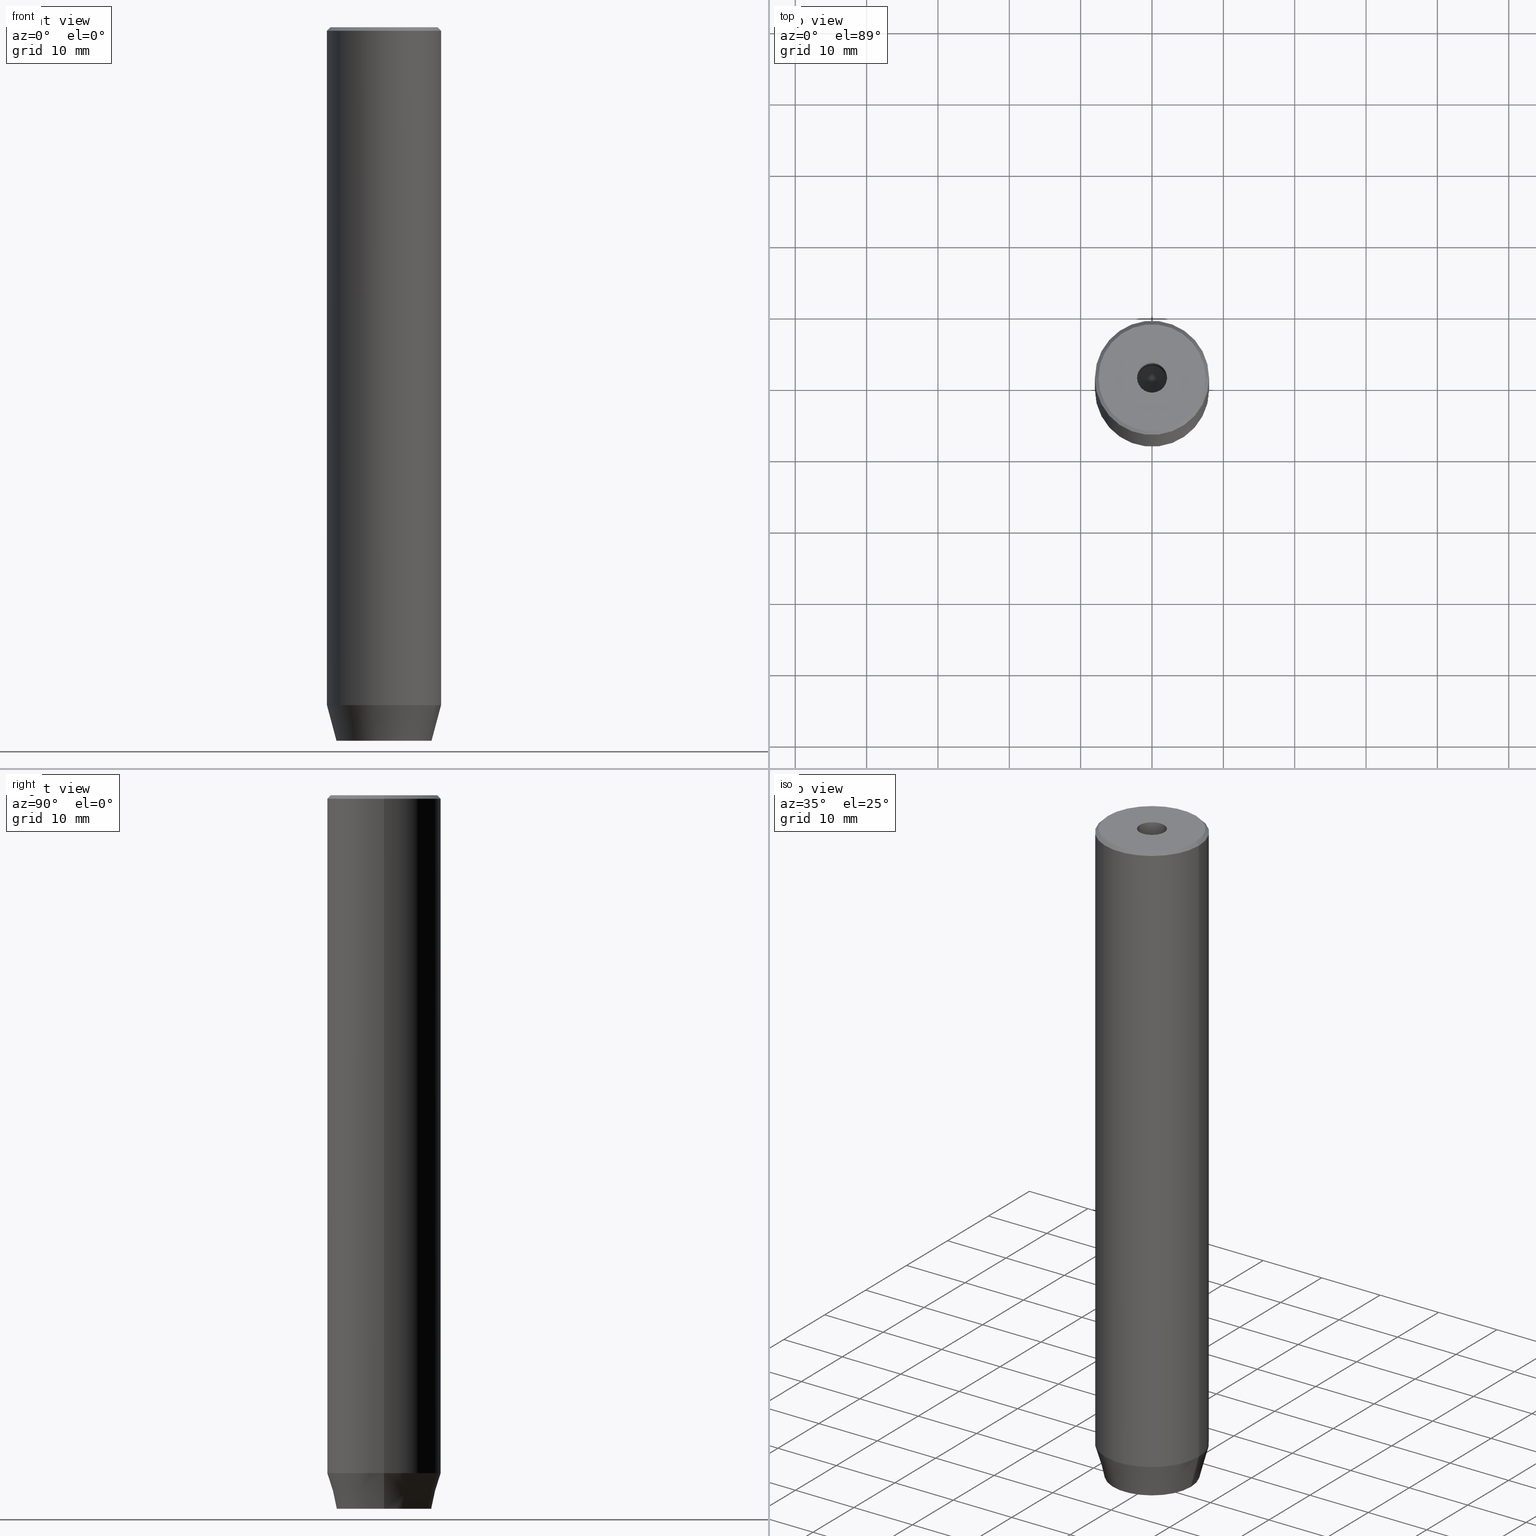
[diagram: canonical four-view strip — front | top / right | iso, engineering-drawing reading convention]
A machine part, canonical four-view strip (front | top / right | iso — engineering-drawing reading convention). The complete STEP part file that produces these views, byte-faithful:
ISO-10303-21;
HEADER;
FILE_DESCRIPTION (( 'STEP AP203' ),
    '1' );
FILE_NAME ('06a7.STEP',
    '2024-01-02T20:40:07',
    ( '' ),
    ( '' ),
    'SwSTEP 2.0',
    'SolidWorks 2019',
    '' );
FILE_SCHEMA (( 'CONFIG_CONTROL_DESIGN' ));
ENDSEC;

DATA;
#1 = CARTESIAN_POINT ( 'NONE',  ( 0.000000000000000000, 0.000000000000000000, 0.000000000000000000 ) ) ;
#2 = LINE ( 'NONE', #132, #495 ) ;
#3 = FACE_OUTER_BOUND ( 'NONE', #147, .T. ) ;
#4 = AXIS2_PLACEMENT_3D ( 'NONE', #1, #308, #498 ) ;
#5 = EDGE_LOOP ( 'NONE', ( #416, #580, #477, #236 ) ) ;
#6 = LOCAL_TIME ( 21, 40, 7.000000000000000000, #49 ) ;
#7 = DIRECTION ( 'NONE',  ( 0.5000000000000001110, 0.8660254037844385966, -0.000000000000000000 ) ) ;
#8 = EDGE_CURVE ( 'NONE', #412, #19, #172, .T. ) ;
#9 = VERTEX_POINT ( 'NONE', #400 ) ;
#10 = DIRECTION ( 'NONE',  ( 0.000000000000000000, 0.000000000000000000, -1.000000000000000000 ) ) ;
#11 = EDGE_LOOP ( 'NONE', ( #190, #327, #130, #392 ) ) ;
#12 = LINE ( 'NONE', #548, #445 ) ;
#13 = APPLICATION_CONTEXT ( 'configuration controlled 3d designs of mechanical parts and assemblies' ) ;
#14 = EDGE_CURVE ( 'NONE', #433, #156, #89, .T. ) ;
#15 = VECTOR ( 'NONE', #354, 1000.000000000000000 ) ;
#16 = VERTEX_POINT ( 'NONE', #44 ) ;
#17 = DIRECTION ( 'NONE',  ( 1.000000000000000000, 0.000000000000000000, 0.000000000000000000 ) ) ;
#18 = CARTESIAN_POINT ( 'NONE',  ( -3.000000000000000444, -7.511572993685800087E-16, -97.20000000000000284 ) ) ;
#19 = VERTEX_POINT ( 'NONE', #135 ) ;
#20 = DIRECTION ( 'NONE',  ( -0.000000000000000000, -0.000000000000000000, 1.000000000000000000 ) ) ;
#21 = ORIENTED_EDGE ( 'NONE', *, *, #143, .T. ) ;
#22 = CARTESIAN_POINT ( 'NONE',  ( -2.168404344971008868E-16, -3.464101615137754830, -97.20000000000000284 ) ) ;
#23 = DIRECTION ( 'NONE',  ( 0.5000000000000001110, -0.8660254037844385966, 0.000000000000000000 ) ) ;
#24 = PERSON ( 'NEUR�EN�', 'NEUR�EN�', 'NEUR�EN�', ('NEUR�EN�'), ('NEUR�EN�'), ('NEUR�EN�') ) ;
#25 = EDGE_CURVE ( 'NONE', #117, #152, #362, .T. ) ;
#26 = EDGE_LOOP ( 'NONE', ( #102, #473 ) ) ;
#27 = DIRECTION ( 'NONE',  ( 1.000000000000000000, 0.000000000000000000, -0.000000000000000000 ) ) ;
#28 = LINE ( 'NONE', #256, #494 ) ;
#29 = ORIENTED_EDGE ( 'NONE', *, *, #184, .F. ) ;
#30 = ORIENTED_EDGE ( 'NONE', *, *, #230, .F. ) ;
#31 = CARTESIAN_POINT ( 'NONE',  ( -3.000000000000000444, -7.511572993685800087E-16, -100.0000000000000000 ) ) ;
#32 = ORIENTED_EDGE ( 'NONE', *, *, #296, .T. ) ;
#33 = ADVANCED_FACE ( 'NONE', ( #175 ), #358, .F. ) ;
#34 = DATE_AND_TIME ( #162, #97 ) ;
#35 = CARTESIAN_POINT ( 'NONE',  ( -8.000000000000000000, 9.797174393178825657E-16, -0.5000000000000213163 ) ) ;
#36 = PRODUCT ( '06a7', '06a7', '', ( #250 ) ) ;
#37 = AXIS2_PLACEMENT_3D ( 'NONE', #479, #27, #578 ) ;
#38 = ORIENTED_EDGE ( 'NONE', *, *, #520, .F. ) ;
#39 = APPROVAL_STATUS ( 'not_yet_approved' ) ;
#40 = DIRECTION ( 'NONE',  ( -0.000000000000000000, -0.000000000000000000, 1.000000000000000000 ) ) ;
#41 = ORIENTED_EDGE ( 'NONE', *, *, #427, .T. ) ;
#42 = CARTESIAN_POINT ( 'NONE',  ( -3.000000000000000000, -1.732050807568877859, -97.20000000000000284 ) ) ;
#43 = PLANE ( 'NONE',  #104 ) ;
#44 = CARTESIAN_POINT ( 'NONE',  ( 3.000000000000000000, 1.732050807568876527, -100.0000000000000000 ) ) ;
#45 = EDGE_CURVE ( 'NONE', #231, #152, #51, .T. ) ;
#46 = AXIS2_PLACEMENT_3D ( 'NONE', #251, #203, #532 ) ;
#47 = CIRCLE ( 'NONE', #399, 7.499999999999978684 ) ;
#48 = DIRECTION ( 'NONE',  ( 0.8660254037844385966, -0.5000000000000001110, 0.000000000000000000 ) ) ;
#49 = COORDINATED_UNIVERSAL_TIME_OFFSET ( 1, 0, .AHEAD. ) ;
#50 = LINE ( 'NONE', #58, #484 ) ;
#51 = LINE ( 'NONE', #59, #15 ) ;
#52 = ORIENTED_EDGE ( 'NONE', *, *, #221, .F. ) ;
#53 = ADVANCED_FACE ( 'NONE', ( #261 ), #280, .T. ) ;
#54 = FACE_OUTER_BOUND ( 'NONE', #112, .T. ) ;
#55 = CARTESIAN_POINT ( 'NONE',  ( -3.000000000000000888, 1.732050807568876527, -97.20000000000000284 ) ) ;
#56 = AXIS2_PLACEMENT_3D ( 'NONE', #447, #223, #505 ) ;
#57 = AXIS2_PLACEMENT_3D ( 'NONE', #60, #232, #371 ) ;
#58 = CARTESIAN_POINT ( 'NONE',  ( 1.500000000000000222, 2.598076211353315568, -100.0000000000000000 ) ) ;
#59 = CARTESIAN_POINT ( 'NONE',  ( -1.084202172485504434E-16, 3.464101615137754830, -97.20000000000000284 ) ) ;
#60 = CARTESIAN_POINT ( 'NONE',  ( 0.000000000000000000, 0.000000000000000000, 0.000000000000000000 ) ) ;
#61 = ORIENTED_EDGE ( 'NONE', *, *, #191, .F. ) ;
#62 = FACE_OUTER_BOUND ( 'NONE', #26, .T. ) ;
#63 = AXIS2_PLACEMENT_3D ( 'NONE', #277, #458, #365 ) ;
#64 = AXIS2_PLACEMENT_3D ( 'NONE', #510, #554, #17 ) ;
#65 = EDGE_LOOP ( 'NONE', ( #540, #419, #464, #214, #350, #87 ) ) ;
#66 = CARTESIAN_POINT ( 'NONE',  ( 8.000000000000000000, 0.000000000000000000, 0.000000000000000000 ) ) ;
#67 = ORIENTED_EDGE ( 'NONE', *, *, #411, .F. ) ;
#68 = DIRECTION ( 'NONE',  ( 1.000000000000000000, 0.000000000000000000, 0.000000000000000000 ) ) ;
#69 = ORIENTED_EDGE ( 'NONE', *, *, #520, .T. ) ;
#70 = EDGE_CURVE ( 'NONE', #272, #412, #265, .T. ) ;
#71 = CARTESIAN_POINT ( 'NONE',  ( 1.500000000000000222, -2.598076211353315568, -97.20000000000000284 ) ) ;
#72 = EDGE_LOOP ( 'NONE', ( #260, #338, #378, #471 ) ) ;
#73 = ORIENTED_EDGE ( 'NONE', *, *, #351, .F. ) ;
#74 = AXIS2_PLACEMENT_3D ( 'NONE', #79, #386, #249 ) ;
#75 = CC_DESIGN_PERSON_AND_ORGANIZATION_ASSIGNMENT ( #393, #202, ( #137 ) ) ;
#76 = DIRECTION ( 'NONE',  ( 1.000000000000000000, 0.000000000000000000, 0.000000000000000000 ) ) ;
#77 = VERTEX_POINT ( 'NONE', #405 ) ;
#78 = VERTEX_POINT ( 'NONE', #55 ) ;
#79 = CARTESIAN_POINT ( 'NONE',  ( 0.000000000000000000, 0.000000000000000000, -1.990051048614449116E-16 ) ) ;
#80 = ORIENTED_EDGE ( 'NONE', *, *, #511, .T. ) ;
#81 = EDGE_CURVE ( 'NONE', #482, #516, #275, .T. ) ;
#82 = VECTOR ( 'NONE', #158, 1000.000000000000000 ) ;
#83 = CARTESIAN_POINT ( 'NONE',  ( 0.000000000000000000, 0.000000000000000000, -95.00000000000000000 ) ) ;
#84 = ORIENTED_EDGE ( 'NONE', *, *, #319, .F. ) ;
#85 = CALENDAR_DATE ( 2024, 2, 1 ) ;
#86 = LINE ( 'NONE', #381, #523 ) ;
#87 = ORIENTED_EDGE ( 'NONE', *, *, #357, .T. ) ;
#88 = ADVANCED_FACE ( 'NONE', ( #542 ), #401, .F. ) ;
#89 = LINE ( 'NONE', #549, #186 ) ;
#90 = EDGE_CURVE ( 'NONE', #516, #482, #388, .T. ) ;
#91 = PERSON_AND_ORGANIZATION ( #24, #208 ) ;
#92 = CARTESIAN_POINT ( 'NONE',  ( 8.000000000000000000, 0.000000000000000000, -95.00000000000000000 ) ) ;
#93 = DIRECTION ( 'NONE',  ( -0.000000000000000000, -0.000000000000000000, 1.000000000000000000 ) ) ;
#94 = LINE ( 'NONE', #264, #462 ) ;
#95 = FACE_OUTER_BOUND ( 'NONE', #11, .T. ) ;
#96 = VECTOR ( 'NONE', #98, 1000.000000000000000 ) ;
#97 = LOCAL_TIME ( 21, 40, 7.000000000000000000, #564 ) ;
#98 = DIRECTION ( 'NONE',  ( 0.8571673007021111124, 0.000000000000000000, 0.5150380749100562650 ) ) ;
#99 = PLANE ( 'NONE',  #218 ) ;
#100 = ADVANCED_FACE ( 'NONE', ( #3 ), #138, .T. ) ;
#101 = CARTESIAN_POINT ( 'NONE',  ( 0.000000000000000000, 0.000000000000000000, -0.5000000000000213163 ) ) ;
#102 = ORIENTED_EDGE ( 'NONE', *, *, #486, .T. ) ;
#103 = PRODUCT_DEFINITION_SHAPE ( 'NONE', 'NONE',  #448 ) ;
#104 = AXIS2_PLACEMENT_3D ( 'NONE', #361, #7, #309 ) ;
#105 = CARTESIAN_POINT ( 'NONE',  ( 0.000000000000000000, 0.000000000000000000, 0.000000000000000000 ) ) ;
#106 = ORIENTED_EDGE ( 'NONE', *, *, #8, .T. ) ;
#107 = ADVANCED_FACE ( 'NONE', ( #95 ), #444, .T. ) ;
#108 = CARTESIAN_POINT ( 'NONE',  ( 2.099999999999996092, 0.000000000000000000, -20.00000000000000000 ) ) ;
#109 = EDGE_LOOP ( 'NONE', ( #121, #193, #80, #41 ) ) ;
#110 = PERSON_AND_ORGANIZATION ( #24, #208 ) ;
#111 = DIRECTION ( 'NONE',  ( 1.000000000000000000, 0.000000000000000000, 0.000000000000000000 ) ) ;
#112 = EDGE_LOOP ( 'NONE', ( #284, #164, #552 ) ) ;
#113 = EDGE_LOOP ( 'NONE', ( #288, #84, #291, #417 ) ) ;
#114 = ADVANCED_FACE ( 'NONE', ( #196 ), #145, .F. ) ;
#115 = DIRECTION ( 'NONE',  ( 1.000000000000000000, 0.000000000000000000, 0.000000000000000000 ) ) ;
#116 = AXIS2_PLACEMENT_3D ( 'NONE', #279, #283, #148 ) ;
#117 = VERTEX_POINT ( 'NONE', #322 ) ;
#118 = ORIENTED_EDGE ( 'NONE', *, *, #81, .T. ) ;
#119 = DATE_AND_TIME ( #248, #220 ) ;
#120 = DIRECTION ( 'NONE',  ( 0.7071067811865474617, 8.659560562354932858E-17, -0.7071067811865474617 ) ) ;
#121 = ORIENTED_EDGE ( 'NONE', *, *, #278, .F. ) ;
#122 = APPROVAL_STATUS ( 'not_yet_approved' ) ;
#123 = LINE ( 'NONE', #481, #179 ) ;
#124 = VERTEX_POINT ( 'NONE', #155 ) ;
#125 = PERSON_AND_ORGANIZATION_ROLE ( 'classification_officer' ) ;
#126 = CARTESIAN_POINT ( 'NONE',  ( -1.500000000000000666, -2.598076211353316456, -97.20000000000000284 ) ) ;
#127 = AXIS2_PLACEMENT_3D ( 'NONE', #320, #282, #466 ) ;
#128 = ADVANCED_FACE ( 'NONE', ( #287 ), #434, .T. ) ;
#129 = CARTESIAN_POINT ( 'NONE',  ( 2.099999999999996092, 0.000000000000000000, -20.00000000000000000 ) ) ;
#130 = ORIENTED_EDGE ( 'NONE', *, *, #492, .F. ) ;
#131 = DATE_TIME_ROLE ( 'classification_date' ) ;
#132 = CARTESIAN_POINT ( 'NONE',  ( 1.500000000000000222, 2.598076211353315568, -97.20000000000000284 ) ) ;
#133 = DIRECTION ( 'NONE',  ( 1.000000000000000000, 0.000000000000000000, 0.000000000000000000 ) ) ;
#134 = CC_DESIGN_DATE_AND_TIME_ASSIGNMENT ( #119, #575, ( #448 ) ) ;
#135 = CARTESIAN_POINT ( 'NONE',  ( -2.168404344971008868E-16, -3.464101615137754830, -100.0000000000000000 ) ) ;
#136 = VECTOR ( 'NONE', #353, 1000.000000000000000 ) ;
#137 = PRODUCT_DEFINITION_FORMATION_WITH_SPECIFIED_SOURCE ( 'LIBOVOLN�', '', #36, .NOT_KNOWN. ) ;
#138 = CYLINDRICAL_SURFACE ( 'NONE', #414, 8.000000000000000000 ) ;
#139 = LINE ( 'NONE', #352, #136 ) ;
#140 = DIRECTION ( 'NONE',  ( 1.000000000000000000, 0.000000000000000000, 0.000000000000000000 ) ) ;
#141 = LINE ( 'NONE', #22, #187 ) ;
#142 = AXIS2_PLACEMENT_3D ( 'NONE', #438, #344, #528 ) ;
#143 = EDGE_CURVE ( 'NONE', #387, #181, #483, .T. ) ;
#144 = DIRECTION ( 'NONE',  ( -0.000000000000000000, -0.000000000000000000, 1.000000000000000000 ) ) ;
#145 = PLANE ( 'NONE',  #470 ) ;
#146 = CARTESIAN_POINT ( 'NONE',  ( 6.660254037844381969, 0.000000000000000000, -100.0000000000000000 ) ) ;
#147 = EDGE_LOOP ( 'NONE', ( #21, #379, #439, #333 ) ) ;
#148 = DIRECTION ( 'NONE',  ( 1.000000000000000000, 0.000000000000000000, 0.000000000000000000 ) ) ;
#149 = DIRECTION ( 'NONE',  ( 0.000000000000000000, 0.000000000000000000, -1.000000000000000000 ) ) ;
#150 = EDGE_CURVE ( 'NONE', #422, #124, #165, .T. ) ;
#151 = DIRECTION ( 'NONE',  ( 1.000000000000000000, 0.000000000000000000, 0.000000000000000000 ) ) ;
#152 = VERTEX_POINT ( 'NONE', #298 ) ;
#153 = ORIENTED_EDGE ( 'NONE', *, *, #319, .T. ) ;
#154 = COORDINATED_UNIVERSAL_TIME_OFFSET ( 1, 0, .AHEAD. ) ;
#155 = CARTESIAN_POINT ( 'NONE',  ( -3.000000000000000000, -1.732050807568877859, -97.20000000000000284 ) ) ;
#156 = VERTEX_POINT ( 'NONE', #35 ) ;
#157 = DIRECTION ( 'NONE',  ( 0.8660254037844385966, 0.5000000000000001110, 0.000000000000000000 ) ) ;
#158 = DIRECTION ( 'NONE',  ( -0.8660254037844385966, 0.5000000000000001110, 0.000000000000000000 ) ) ;
#159 = FACE_OUTER_BOUND ( 'NONE', #72, .T. ) ;
#160 = VECTOR ( 'NONE', #556, 1000.000000000000000 ) ;
#161 = CARTESIAN_POINT ( 'NONE',  ( 3.000000000000000000, -1.732050807568876527, -97.20000000000000284 ) ) ;
#162 = CALENDAR_DATE ( 2024, 2, 1 ) ;
#163 = PLANE ( 'NONE',  #142 ) ;
#164 = ORIENTED_EDGE ( 'NONE', *, *, #411, .T. ) ;
#165 = LINE ( 'NONE', #126, #82 ) ;
#166 = EDGE_LOOP ( 'NONE', ( #67, #244, #503 ) ) ;
#167 = EDGE_CURVE ( 'NONE', #9, #490, #86, .T. ) ;
#168 = AXIS2_PLACEMENT_3D ( 'NONE', #101, #561, #467 ) ;
#169 = DIRECTION ( 'NONE',  ( 0.000000000000000000, 0.000000000000000000, -1.000000000000000000 ) ) ;
#170 = ORIENTED_EDGE ( 'NONE', *, *, #296, .F. ) ;
#171 = CARTESIAN_POINT ( 'NONE',  ( -8.000000000000000000, 9.797174393178825657E-16, 0.000000000000000000 ) ) ;
#172 = LINE ( 'NONE', #455, #534 ) ;
#173 = EDGE_CURVE ( 'NONE', #295, #281, #562, .T. ) ;
#174 = FACE_OUTER_BOUND ( 'NONE', #345, .T. ) ;
#175 = FACE_OUTER_BOUND ( 'NONE', #529, .T. ) ;
#176 = LINE ( 'NONE', #313, #524 ) ;
#177 = AXIS2_PLACEMENT_3D ( 'NONE', #557, #149, #317 ) ;
#178 = ORIENTED_EDGE ( 'NONE', *, *, #90, .F. ) ;
#179 = VECTOR ( 'NONE', #40, 1000.000000000000000 ) ;
#180 = CIRCLE ( 'NONE', #168, 8.000000000000000000 ) ;
#181 = VERTEX_POINT ( 'NONE', #426 ) ;
#182 = DIRECTION ( 'NONE',  ( 0.8660254037844387076, 0.4999999999999999445, 0.000000000000000000 ) ) ;
#183 = CARTESIAN_POINT ( 'NONE',  ( -2.099999999999998757, 2.571758278209440478E-16, -1.990051048614449116E-16 ) ) ;
#184 = EDGE_CURVE ( 'NONE', #181, #387, #407, .T. ) ;
#185 = DIRECTION ( 'NONE',  ( 1.000000000000000000, 0.000000000000000000, 0.000000000000000000 ) ) ;
#186 = VECTOR ( 'NONE', #364, 1000.000000000000114 ) ;
#187 = VECTOR ( 'NONE', #229, 1000.000000000000000 ) ;
#188 = CARTESIAN_POINT ( 'NONE',  ( 0.000000000000000000, 0.000000000000000000, 0.000000000000000000 ) ) ;
#189 = DIRECTION ( 'NONE',  ( 2.503857664561933362E-16, -1.000000000000000000, 0.000000000000000000 ) ) ;
#190 = ORIENTED_EDGE ( 'NONE', *, *, #476, .F. ) ;
#191 = EDGE_CURVE ( 'NONE', #16, #412, #430, .T. ) ;
#192 = CARTESIAN_POINT ( 'NONE',  ( 8.000000000000000000, 0.000000000000000000, -0.5000000000000213163 ) ) ;
#193 = ORIENTED_EDGE ( 'NONE', *, *, #173, .F. ) ;
#194 = LINE ( 'NONE', #108, #96 ) ;
#195 = CC_DESIGN_PERSON_AND_ORGANIZATION_ASSIGNMENT ( #531, #125, ( #496 ) ) ;
#196 = FACE_OUTER_BOUND ( 'NONE', #113, .T. ) ;
#197 = ORIENTED_EDGE ( 'NONE', *, *, #25, .T. ) ;
#198 = CIRCLE ( 'NONE', #571, 8.000000000000000000 ) ;
#199 = LOCAL_TIME ( 21, 40, 7.000000000000000000, #297 ) ;
#200 = ORIENTED_EDGE ( 'NONE', *, *, #25, .F. ) ;
#201 = EDGE_LOOP ( 'NONE', ( #170, #566, #335, #29 ) ) ;
#202 = PERSON_AND_ORGANIZATION_ROLE ( 'creator' ) ;
#203 = DIRECTION ( 'NONE',  ( -0.000000000000000000, -0.000000000000000000, 1.000000000000000000 ) ) ;
#204 = ADVANCED_FACE ( 'NONE', ( #206 ), #366, .F. ) ;
#205 = PERSON_AND_ORGANIZATION ( #24, #208 ) ;
#206 = FACE_OUTER_BOUND ( 'NONE', #166, .T. ) ;
#207 = PERSON_AND_ORGANIZATION_ROLE ( 'creator' ) ;
#208 = ORGANIZATION ( 'NEUR�EN�', 'NEUR�EN�', '' ) ;
#209 = LINE ( 'NONE', #42, #253 ) ;
#210 = ORIENTED_EDGE ( 'NONE', *, *, #427, .F. ) ;
#211 = DATE_AND_TIME ( #330, #199 ) ;
#212 = EDGE_CURVE ( 'NONE', #482, #387, #28, .T. ) ;
#213 = CARTESIAN_POINT ( 'NONE',  ( -2.099999999999996092, 2.571758278209436534E-16, -20.00000000000000000 ) ) ;
#214 = ORIENTED_EDGE ( 'NONE', *, *, #368, .T. ) ;
#215 = DIRECTION ( 'NONE',  ( -0.000000000000000000, -0.000000000000000000, 1.000000000000000000 ) ) ;
#216 = ORIENTED_EDGE ( 'NONE', *, *, #252, .T. ) ;
#217 = DATE_AND_TIME ( #85, #454 ) ;
#218 = AXIS2_PLACEMENT_3D ( 'NONE', #369, #10, #363 ) ;
#219 = CARTESIAN_POINT ( 'NONE',  ( -1.499999999999999556, 2.598076211353316012, -100.0000000000000000 ) ) ;
#220 = LOCAL_TIME ( 21, 40, 7.000000000000000000, #154 ) ;
#221 = EDGE_CURVE ( 'NONE', #124, #292, #209, .T. ) ;
#222 = DIRECTION ( 'NONE',  ( -0.4999999999999999445, 0.8660254037844387076, 0.000000000000000000 ) ) ;
#223 = DIRECTION ( 'NONE',  ( -0.000000000000000000, -0.000000000000000000, 1.000000000000000000 ) ) ;
#224 = DIRECTION ( 'NONE',  ( 0.8660254037844385966, -0.5000000000000001110, 0.000000000000000000 ) ) ;
#225 = DIRECTION ( 'NONE',  ( -0.5000000000000001110, -0.8660254037844385966, 0.000000000000000000 ) ) ;
#226 = CARTESIAN_POINT ( 'NONE',  ( -5.207640850796248781E-15, 0.000000000000000000, -21.26180729995787999 ) ) ;
#227 = AXIS2_PLACEMENT_3D ( 'NONE', #502, #546, #140 ) ;
#228 = CONICAL_SURFACE ( 'NONE', #305, 7.499999999999978684, 0.7853981633974482790 ) ;
#229 = DIRECTION ( 'NONE',  ( -0.000000000000000000, -0.000000000000000000, -1.000000000000000000 ) ) ;
#230 = EDGE_CURVE ( 'NONE', #490, #156, #198, .T. ) ;
#231 = VERTEX_POINT ( 'NONE', #246 ) ;
#232 = DIRECTION ( 'NONE',  ( -0.000000000000000000, -0.000000000000000000, 1.000000000000000000 ) ) ;
#233 = APPROVAL ( #539, 'NEUR�EN�' ) ;
#234 = ORIENTED_EDGE ( 'NONE', *, *, #486, .F. ) ;
#235 = CARTESIAN_POINT ( 'NONE',  ( -6.660254037844381969, 8.976816591066591237E-16, -100.0000000000000000 ) ) ;
#236 = ORIENTED_EDGE ( 'NONE', *, *, #230, .T. ) ;
#237 = VECTOR ( 'NONE', #306, 999.9999999999998863 ) ;
#238 = AXIS2_PLACEMENT_3D ( 'NONE', #508, #144, #151 ) ;
#239 = CC_DESIGN_PERSON_AND_ORGANIZATION_ASSIGNMENT ( #205, #207, ( #448 ) ) ;
#240 = CARTESIAN_POINT ( 'NONE',  ( 2.099999999999997424, 0.000000000000000000, 0.000000000000000000 ) ) ;
#241 = ORIENTED_EDGE ( 'NONE', *, *, #511, .F. ) ;
#242 = DIRECTION ( 'NONE',  ( 0.000000000000000000, -0.000000000000000000, 1.000000000000000000 ) ) ;
#243 = ORIENTED_EDGE ( 'NONE', *, *, #267, .F. ) ;
#244 = ORIENTED_EDGE ( 'NONE', *, *, #302, .T. ) ;
#245 = APPLICATION_PROTOCOL_DEFINITION ( 'international standard', 'config_control_design', 1994, #13 ) ;
#246 = CARTESIAN_POINT ( 'NONE',  ( -1.084202172485504434E-16, 3.464101615137754830, -97.20000000000000284 ) ) ;
#247 = EDGE_CURVE ( 'NONE', #77, #16, #391, .T. ) ;
#248 = CALENDAR_DATE ( 2024, 2, 1 ) ;
#249 = DIRECTION ( 'NONE',  ( 1.000000000000000000, 0.000000000000000000, 0.000000000000000000 ) ) ;
#250 = MECHANICAL_CONTEXT ( 'NONE', #359, 'mechanical' ) ;
#251 = CARTESIAN_POINT ( 'NONE',  ( 0.000000000000000000, 0.000000000000000000, -95.00000000000000000 ) ) ;
#252 = EDGE_CURVE ( 'NONE', #406, #332, #324, .T. ) ;
#253 = VECTOR ( 'NONE', #469, 1000.000000000000000 ) ;
#254 = APPLICATION_PROTOCOL_DEFINITION ( 'international standard', 'config_control_design', 1994, #359 ) ;
#255 = CIRCLE ( 'NONE', #238, 7.499999999999978684 ) ;
#256 = CARTESIAN_POINT ( 'NONE',  ( 8.000000000000000000, 0.000000000000000000, -95.00000000000000000 ) ) ;
#257 = CALENDAR_DATE ( 2024, 2, 1 ) ;
#258 = CC_DESIGN_PERSON_AND_ORGANIZATION_ASSIGNMENT ( #380, #568, ( #137 ) ) ;
#259 = DIRECTION ( 'NONE',  ( -0.000000000000000000, -0.000000000000000000, 1.000000000000000000 ) ) ;
#260 = ORIENTED_EDGE ( 'NONE', *, *, #191, .T. ) ;
#261 = FACE_OUTER_BOUND ( 'NONE', #201, .T. ) ;
#262 = APPROVAL_DATE_TIME ( #217, #233 ) ;
#263 = CLOSED_SHELL ( 'NONE', ( #88, #204, #107, #128, #100, #273, #457, #530, #53, #382, #397, #114, #33, #567, #576, #285, #420, #403, #465 ) ) ;
#264 = CARTESIAN_POINT ( 'NONE',  ( 1.500000000000000222, -2.598076211353315568, -97.20000000000000284 ) ) ;
#265 = LINE ( 'NONE', #303, #550 ) ;
#266 = CC_DESIGN_APPROVAL ( #340, ( #448 ) ) ;
#267 = EDGE_CURVE ( 'NONE', #292, #117, #294, .T. ) ;
#268 = ADVANCED_BREP_SHAPE_REPRESENTATION ( '06a7', ( #501, #485 ), #389 ) ;
#269 = DIRECTION ( 'NONE',  ( -0.8660254037844385966, -0.5000000000000001110, 0.000000000000000000 ) ) ;
#270 = LINE ( 'NONE', #171, #415 ) ;
#271 = DIRECTION ( 'NONE',  ( 1.000000000000000000, 0.000000000000000000, 0.000000000000000000 ) ) ;
#272 = VERTEX_POINT ( 'NONE', #161 ) ;
#273 = ADVANCED_FACE ( 'NONE', ( #526, #577 ), #163, .T. ) ;
#274 = LINE ( 'NONE', #489, #348 ) ;
#275 = CIRCLE ( 'NONE', #56, 6.660254037844381969 ) ;
#276 = PLANE ( 'NONE',  #299 ) ;
#277 = CARTESIAN_POINT ( 'NONE',  ( 0.000000000000000000, 0.000000000000000000, -20.00000000000000000 ) ) ;
#278 = EDGE_CURVE ( 'NONE', #281, #406, #123, .T. ) ;
#279 = CARTESIAN_POINT ( 'NONE',  ( 0.000000000000000000, 0.000000000000000000, -1.990051048614449116E-16 ) ) ;
#280 = CONICAL_SURFACE ( 'NONE', #336, 8.000000000000000000, 0.2617993877991500740 ) ;
#281 = VERTEX_POINT ( 'NONE', #213 ) ;
#282 = DIRECTION ( 'NONE',  ( -0.000000000000000000, -0.000000000000000000, 1.000000000000000000 ) ) ;
#283 = DIRECTION ( 'NONE',  ( -0.000000000000000000, -0.000000000000000000, 1.000000000000000000 ) ) ;
#284 = ORIENTED_EDGE ( 'NONE', *, *, #302, .F. ) ;
#285 = ADVANCED_FACE ( 'NONE', ( #394 ), #43, .F. ) ;
#286 = FACE_OUTER_BOUND ( 'NONE', #560, .T. ) ;
#287 = FACE_OUTER_BOUND ( 'NONE', #372, .T. ) ;
#288 = ORIENTED_EDGE ( 'NONE', *, *, #267, .T. ) ;
#289 = ORIENTED_EDGE ( 'NONE', *, *, #247, .F. ) ;
#290 = CARTESIAN_POINT ( 'NONE',  ( 3.000000000000000000, 1.732050807568876527, -97.20000000000000284 ) ) ;
#291 = ORIENTED_EDGE ( 'NONE', *, *, #357, .F. ) ;
#292 = VERTEX_POINT ( 'NONE', #497 ) ;
#293 = PLANE ( 'NONE',  #585 ) ;
#294 = LINE ( 'NONE', #31, #398 ) ;
#295 = VERTEX_POINT ( 'NONE', #129 ) ;
#296 = EDGE_CURVE ( 'NONE', #516, #181, #446, .T. ) ;
#297 = COORDINATED_UNIVERSAL_TIME_OFFSET ( 1, 0, .AHEAD. ) ;
#298 = CARTESIAN_POINT ( 'NONE',  ( -2.168404344971008868E-16, 3.464101615137754830, -100.0000000000000000 ) ) ;
#299 = AXIS2_PLACEMENT_3D ( 'NONE', #188, #242, #68 ) ;
#300 = ORIENTED_EDGE ( 'NONE', *, *, #252, .F. ) ;
#301 = DIRECTION ( 'NONE',  ( -0.8660254037844387076, -0.4999999999999999445, 0.000000000000000000 ) ) ;
#302 = EDGE_CURVE ( 'NONE', #384, #281, #176, .T. ) ;
#303 = CARTESIAN_POINT ( 'NONE',  ( 3.000000000000000000, -1.732050807568876527, -97.20000000000000284 ) ) ;
#304 = VECTOR ( 'NONE', #475, 1000.000000000000000 ) ;
#305 = AXIS2_PLACEMENT_3D ( 'NONE', #396, #169, #404 ) ;
#306 = DIRECTION ( 'NONE',  ( 0.8660254037844387076, 0.4999999999999999445, 0.000000000000000000 ) ) ;
#307 = VECTOR ( 'NONE', #20, 1000.000000000000000 ) ;
#308 = DIRECTION ( 'NONE',  ( -0.000000000000000000, -0.000000000000000000, 1.000000000000000000 ) ) ;
#309 = DIRECTION ( 'NONE',  ( -0.8660254037844385966, 0.5000000000000001110, 0.000000000000000000 ) ) ;
#310 = CARTESIAN_POINT ( 'NONE',  ( 0.000000000000000000, 0.000000000000000000, 0.000000000000000000 ) ) ;
#311 = EDGE_CURVE ( 'NONE', #181, #156, #270, .T. ) ;
#312 = EDGE_LOOP ( 'NONE', ( #210, #300 ) ) ;
#313 = CARTESIAN_POINT ( 'NONE',  ( -2.099999999999996092, 2.571758278209436534E-16, -20.00000000000000000 ) ) ;
#314 = DIRECTION ( 'NONE',  ( -0.000000000000000000, -0.000000000000000000, 1.000000000000000000 ) ) ;
#315 = CARTESIAN_POINT ( 'NONE',  ( -7.499999999999978684, 0.000000000000000000, 0.000000000000000000 ) ) ;
#316 = AXIS2_PLACEMENT_3D ( 'NONE', #480, #334, #111 ) ;
#317 = DIRECTION ( 'NONE',  ( -1.000000000000000000, 0.000000000000000000, 0.000000000000000000 ) ) ;
#318 = APPROVAL_PERSON_ORGANIZATION ( #110, #340, #339 ) ;
#319 = EDGE_CURVE ( 'NONE', #78, #117, #139, .T. ) ;
#320 = CARTESIAN_POINT ( 'NONE',  ( 0.000000000000000000, 0.000000000000000000, -20.00000000000000000 ) ) ;
#321 = FACE_BOUND ( 'NONE', #312, .T. ) ;
#322 = CARTESIAN_POINT ( 'NONE',  ( -3.000000000000000888, 1.732050807568876527, -100.0000000000000000 ) ) ;
#323 = CARTESIAN_POINT ( 'NONE',  ( 3.000000000000000000, -1.732050807568876527, -100.0000000000000000 ) ) ;
#324 = CIRCLE ( 'NONE', #74, 2.099999999999998757 ) ;
#325 = ORIENTED_EDGE ( 'NONE', *, *, #374, .T. ) ;
#326 = CYLINDRICAL_SURFACE ( 'NONE', #64, 2.099999999999997424 ) ;
#327 = ORIENTED_EDGE ( 'NONE', *, *, #167, .T. ) ;
#328 = EDGE_CURVE ( 'NONE', #231, #77, #2, .T. ) ;
#329 = EDGE_LOOP ( 'NONE', ( #428, #533, #216, #241 ) ) ;
#330 = CALENDAR_DATE ( 2024, 2, 1 ) ;
#331 = DIRECTION ( 'NONE',  ( 0.000000000000000000, -1.000000000000000000, 0.000000000000000000 ) ) ;
#332 = VERTEX_POINT ( 'NONE', #504 ) ;
#333 = ORIENTED_EDGE ( 'NONE', *, *, #507, .F. ) ;
#334 = DIRECTION ( 'NONE',  ( -0.000000000000000000, -0.000000000000000000, 1.000000000000000000 ) ) ;
#335 = ORIENTED_EDGE ( 'NONE', *, *, #212, .T. ) ;
#336 = AXIS2_PLACEMENT_3D ( 'NONE', #443, #314, #133 ) ;
#337 = AXIS2_PLACEMENT_3D ( 'NONE', #569, #259, #115 ) ;
#338 = ORIENTED_EDGE ( 'NONE', *, *, #70, .F. ) ;
#339 = APPROVAL_ROLE ( '' ) ;
#340 = APPROVAL ( #39, 'NEUR�EN�' ) ;
#341 = CARTESIAN_POINT ( 'NONE',  ( 3.000000000000000000, 0.000000000000000000, -100.0000000000000000 ) ) ;
#342 = EDGE_LOOP ( 'NONE', ( #468, #234, #459, #30 ) ) ;
#343 = PLANE ( 'NONE',  #37 ) ;
#344 = DIRECTION ( 'NONE',  ( 0.000000000000000000, 0.000000000000000000, -1.000000000000000000 ) ) ;
#345 = EDGE_LOOP ( 'NONE', ( #197, #519, #73, #153 ) ) ;
#346 = CARTESIAN_POINT ( 'NONE',  ( 0.000000000000000000, 0.000000000000000000, 0.000000000000000000 ) ) ;
#347 = CARTESIAN_POINT ( 'NONE',  ( 0.000000000000000000, 0.000000000000000000, -0.5000000000000213163 ) ) ;
#348 = VECTOR ( 'NONE', #450, 1000.000000000000000 ) ;
#349 = DIRECTION ( 'NONE',  ( -0.2588190451025213501, 3.169619151431772337E-17, 0.9659258262890680902 ) ) ;
#350 = ORIENTED_EDGE ( 'NONE', *, *, #150, .T. ) ;
#351 = EDGE_CURVE ( 'NONE', #78, #231, #491, .T. ) ;
#352 = CARTESIAN_POINT ( 'NONE',  ( -3.000000000000000888, 1.732050807568876527, -97.20000000000000284 ) ) ;
#353 = DIRECTION ( 'NONE',  ( -0.000000000000000000, -0.000000000000000000, -1.000000000000000000 ) ) ;
#354 = DIRECTION ( 'NONE',  ( -0.000000000000000000, -0.000000000000000000, -1.000000000000000000 ) ) ;
#355 = AXIS2_PLACEMENT_3D ( 'NONE', #538, #225, #48 ) ;
#356 = PLANE ( 'NONE',  #573 ) ;
#357 = EDGE_CURVE ( 'NONE', #124, #78, #274, .T. ) ;
#358 = PLANE ( 'NONE',  #355 ) ;
#359 = APPLICATION_CONTEXT ( 'configuration controlled 3d designs of mechanical parts and assemblies' ) ;
#360 = ORIENTED_EDGE ( 'NONE', *, *, #368, .F. ) ;
#361 = CARTESIAN_POINT ( 'NONE',  ( 1.500000000000000222, 2.598076211353315568, -97.20000000000000284 ) ) ;
#362 = LINE ( 'NONE', #219, #461 ) ;
#363 = DIRECTION ( 'NONE',  ( -1.000000000000000000, 0.000000000000000000, -0.000000000000000000 ) ) ;
#364 = DIRECTION ( 'NONE',  ( -0.7071067811865474617, 0.000000000000000000, -0.7071067811865474617 ) ) ;
#365 = DIRECTION ( 'NONE',  ( 1.000000000000000000, 0.000000000000000000, 0.000000000000000000 ) ) ;
#366 = CONICAL_SURFACE ( 'NONE', #451, 2.099999999999996092, 1.029744258676652091 ) ;
#367 = CC_DESIGN_APPROVAL ( #535, ( #137 ) ) ;
#368 = EDGE_CURVE ( 'NONE', #272, #422, #94, .T. ) ;
#369 = CARTESIAN_POINT ( 'NONE',  ( 0.000000000000000000, 0.000000000000000000, -97.20000000000000284 ) ) ;
#370 = ORIENTED_EDGE ( 'NONE', *, *, #547, .F. ) ;
#371 = DIRECTION ( 'NONE',  ( 1.000000000000000000, 0.000000000000000000, 0.000000000000000000 ) ) ;
#372 = EDGE_LOOP ( 'NONE', ( #118, #32, #424, #431 ) ) ;
#373 = DIRECTION ( 'NONE',  ( 0.000000000000000000, -1.000000000000000000, 0.000000000000000000 ) ) ;
#374 = EDGE_CURVE ( 'NONE', #152, #16, #50, .T. ) ;
#375 = VECTOR ( 'NONE', #331, 1000.000000000000000 ) ;
#376 = APPROVAL_PERSON_ORGANIZATION ( #390, #535, #474 ) ;
#377 = PERSON_AND_ORGANIZATION ( #24, #208 ) ;
#378 = ORIENTED_EDGE ( 'NONE', *, *, #440, .F. ) ;
#379 = ORIENTED_EDGE ( 'NONE', *, *, #311, .T. ) ;
#380 = PERSON_AND_ORGANIZATION ( #24, #208 ) ;
#381 = CARTESIAN_POINT ( 'NONE',  ( 7.499999999999978684, 9.184850993605122306E-16, 0.000000000000000000 ) ) ;
#382 = ADVANCED_FACE ( 'NONE', ( #453 ), #228, .T. ) ;
#383 = DESIGN_CONTEXT ( 'detailed design', #13, 'design' ) ;
#384 = VERTEX_POINT ( 'NONE', #226 ) ;
#385 =( LENGTH_UNIT ( ) NAMED_UNIT ( * ) SI_UNIT ( .MILLI., .METRE. ) );
#386 = DIRECTION ( 'NONE',  ( -0.000000000000000000, -0.000000000000000000, 1.000000000000000000 ) ) ;
#387 = VERTEX_POINT ( 'NONE', #92 ) ;
#388 = CIRCLE ( 'NONE', #227, 6.660254037844381969 ) ;
#389 =( GEOMETRIC_REPRESENTATION_CONTEXT ( 3 ) GLOBAL_UNCERTAINTY_ASSIGNED_CONTEXT ( ( #559 ) ) GLOBAL_UNIT_ASSIGNED_CONTEXT ( ( #385, #521, #517 ) ) REPRESENTATION_CONTEXT ( 'NONE', 'WORKASPACE' ) );
#390 = PERSON_AND_ORGANIZATION ( #24, #208 ) ;
#391 = LINE ( 'NONE', #290, #304 ) ;
#392 = ORIENTED_EDGE ( 'NONE', *, *, #14, .F. ) ;
#393 = PERSON_AND_ORGANIZATION ( #24, #208 ) ;
#394 = FACE_OUTER_BOUND ( 'NONE', #583, .T. ) ;
#395 = ORIENTED_EDGE ( 'NONE', *, *, #374, .F. ) ;
#396 = CARTESIAN_POINT ( 'NONE',  ( 0.000000000000000000, 0.000000000000000000, 0.000000000000000000 ) ) ;
#397 = ADVANCED_FACE ( 'NONE', ( #174 ), #356, .F. ) ;
#398 = VECTOR ( 'NONE', #572, 1000.000000000000000 ) ;
#399 = AXIS2_PLACEMENT_3D ( 'NONE', #105, #456, #185 ) ;
#400 = CARTESIAN_POINT ( 'NONE',  ( 7.499999999999978684, 9.491012693391973982E-16, 0.000000000000000000 ) ) ;
#401 = CYLINDRICAL_SURFACE ( 'NONE', #4, 2.099999999999997424 ) ;
#402 = COORDINATED_UNIVERSAL_TIME_OFFSET ( 1, 0, .AHEAD. ) ;
#403 = ADVANCED_FACE ( 'NONE', ( #54 ), #452, .F. ) ;
#404 = DIRECTION ( 'NONE',  ( -1.000000000000000000, 0.000000000000000000, 0.000000000000000000 ) ) ;
#405 = CARTESIAN_POINT ( 'NONE',  ( 3.000000000000000000, 1.732050807568876527, -97.20000000000000284 ) ) ;
#406 = VERTEX_POINT ( 'NONE', #183 ) ;
#407 = CIRCLE ( 'NONE', #316, 8.000000000000000000 ) ;
#408 = DIRECTION ( 'NONE',  ( -0.8660254037844385966, -0.5000000000000001110, 0.000000000000000000 ) ) ;
#409 = CYLINDRICAL_SURFACE ( 'NONE', #57, 8.000000000000000000 ) ;
#410 = LINE ( 'NONE', #413, #436 ) ;
#411 = EDGE_CURVE ( 'NONE', #384, #295, #194, .T. ) ;
#412 = VERTEX_POINT ( 'NONE', #323 ) ;
#413 = CARTESIAN_POINT ( 'NONE',  ( -1.500000000000000666, -2.598076211353316456, -100.0000000000000000 ) ) ;
#414 = AXIS2_PLACEMENT_3D ( 'NONE', #310, #93, #271 ) ;
#415 = VECTOR ( 'NONE', #545, 1000.000000000000000 ) ;
#416 = ORIENTED_EDGE ( 'NONE', *, *, #311, .F. ) ;
#417 = ORIENTED_EDGE ( 'NONE', *, *, #221, .T. ) ;
#418 = FACE_OUTER_BOUND ( 'NONE', #65, .T. ) ;
#419 = ORIENTED_EDGE ( 'NONE', *, *, #328, .T. ) ;
#420 = ADVANCED_FACE ( 'NONE', ( #418 ), #99, .T. ) ;
#421 = LINE ( 'NONE', #66, #160 ) ;
#422 = VERTEX_POINT ( 'NONE', #460 ) ;
#423 = PRODUCT_RELATED_PRODUCT_CATEGORY ( 'detail', '', ( #36 ) ) ;
#424 = ORIENTED_EDGE ( 'NONE', *, *, #143, .F. ) ;
#425 = APPROVAL_DATE_TIME ( #211, #535 ) ;
#426 = CARTESIAN_POINT ( 'NONE',  ( -8.000000000000000000, 9.797174393178825657E-16, -95.00000000000000000 ) ) ;
#427 = EDGE_CURVE ( 'NONE', #332, #406, #563, .T. ) ;
#428 = ORIENTED_EDGE ( 'NONE', *, *, #553, .F. ) ;
#429 = SECURITY_CLASSIFICATION_LEVEL ( 'unclassified' ) ;
#430 = LINE ( 'NONE', #341, #375 ) ;
#431 = ORIENTED_EDGE ( 'NONE', *, *, #212, .F. ) ;
#432 = DIRECTION ( 'NONE',  ( 1.000000000000000000, 0.000000000000000000, 0.000000000000000000 ) ) ;
#433 = VERTEX_POINT ( 'NONE', #315 ) ;
#434 = CONICAL_SURFACE ( 'NONE', #584, 8.000000000000000000, 0.2617993877991500740 ) ;
#435 = VECTOR ( 'NONE', #349, 1000.000000000000000 ) ;
#436 = VECTOR ( 'NONE', #551, 1000.000000000000000 ) ;
#437 = PERSON_AND_ORGANIZATION_ROLE ( 'design_owner' ) ;
#438 = CARTESIAN_POINT ( 'NONE',  ( 0.000000000000000000, 6.660254037844381969, -100.0000000000000000 ) ) ;
#439 = ORIENTED_EDGE ( 'NONE', *, *, #492, .T. ) ;
#440 = EDGE_CURVE ( 'NONE', #77, #272, #12, .T. ) ;
#441 = DIRECTION ( 'NONE',  ( 1.000000000000000000, 0.000000000000000000, 0.000000000000000000 ) ) ;
#442 = ORIENTED_EDGE ( 'NONE', *, *, #81, .F. ) ;
#443 = CARTESIAN_POINT ( 'NONE',  ( 0.000000000000000000, 0.000000000000000000, -95.00000000000000000 ) ) ;
#444 = CONICAL_SURFACE ( 'NONE', #177, 7.499999999999978684, 0.7853981633974482790 ) ;
#445 = VECTOR ( 'NONE', #373, 1000.000000000000000 ) ;
#446 = LINE ( 'NONE', #500, #435 ) ;
#447 = CARTESIAN_POINT ( 'NONE',  ( 0.000000000000000000, 0.000000000000000000, -100.0000000000000000 ) ) ;
#448 = PRODUCT_DEFINITION ( 'NEZN�M�', '', #137, #383 ) ;
#449 = ORIENTED_EDGE ( 'NONE', *, *, #8, .F. ) ;
#450 = DIRECTION ( 'NONE',  ( -2.503857664561932376E-16, 1.000000000000000000, 0.000000000000000000 ) ) ;
#451 = AXIS2_PLACEMENT_3D ( 'NONE', #579, #565, #441 ) ;
#452 = CONICAL_SURFACE ( 'NONE', #63, 2.099999999999996092, 1.029744258676652091 ) ;
#453 = FACE_OUTER_BOUND ( 'NONE', #342, .T. ) ;
#454 = LOCAL_TIME ( 21, 40, 7.000000000000000000, #402 ) ;
#455 = CARTESIAN_POINT ( 'NONE',  ( 1.500000000000000222, -2.598076211353315568, -100.0000000000000000 ) ) ;
#456 = DIRECTION ( 'NONE',  ( -0.000000000000000000, -0.000000000000000000, 1.000000000000000000 ) ) ;
#457 = ADVANCED_FACE ( 'NONE', ( #321, #62 ), #276, .T. ) ;
#458 = DIRECTION ( 'NONE',  ( -0.000000000000000000, -0.000000000000000000, 1.000000000000000000 ) ) ;
#459 = ORIENTED_EDGE ( 'NONE', *, *, #14, .T. ) ;
#460 = CARTESIAN_POINT ( 'NONE',  ( -2.168404344971008868E-16, -3.464101615137754830, -97.20000000000000284 ) ) ;
#461 = VECTOR ( 'NONE', #182, 999.9999999999998863 ) ;
#462 = VECTOR ( 'NONE', #269, 1000.000000000000000 ) ;
#463 = CC_DESIGN_APPROVAL ( #233, ( #496 ) ) ;
#464 = ORIENTED_EDGE ( 'NONE', *, *, #440, .T. ) ;
#465 = ADVANCED_FACE ( 'NONE', ( #512 ), #326, .F. ) ;
#466 = DIRECTION ( 'NONE',  ( 1.000000000000000000, 0.000000000000000000, 0.000000000000000000 ) ) ;
#467 = DIRECTION ( 'NONE',  ( 1.000000000000000000, 0.000000000000000000, 0.000000000000000000 ) ) ;
#468 = ORIENTED_EDGE ( 'NONE', *, *, #167, .F. ) ;
#469 = DIRECTION ( 'NONE',  ( -0.000000000000000000, -0.000000000000000000, -1.000000000000000000 ) ) ;
#470 = AXIS2_PLACEMENT_3D ( 'NONE', #18, #515, #189 ) ;
#471 = ORIENTED_EDGE ( 'NONE', *, *, #247, .T. ) ;
#472 = APPROVAL_PERSON_ORGANIZATION ( #91, #233, #544 ) ;
#473 = ORIENTED_EDGE ( 'NONE', *, *, #476, .T. ) ;
#474 = APPROVAL_ROLE ( '' ) ;
#475 = DIRECTION ( 'NONE',  ( -0.000000000000000000, -0.000000000000000000, -1.000000000000000000 ) ) ;
#476 = EDGE_CURVE ( 'NONE', #9, #433, #255, .T. ) ;
#477 = ORIENTED_EDGE ( 'NONE', *, *, #507, .T. ) ;
#478 = ORIENTED_EDGE ( 'NONE', *, *, #150, .F. ) ;
#479 = CARTESIAN_POINT ( 'NONE',  ( 3.000000000000000000, 0.000000000000000000, -97.20000000000000284 ) ) ;
#480 = CARTESIAN_POINT ( 'NONE',  ( 0.000000000000000000, 0.000000000000000000, -95.00000000000000000 ) ) ;
#481 = CARTESIAN_POINT ( 'NONE',  ( -2.099999999999997424, 2.571758278209438506E-16, 0.000000000000000000 ) ) ;
#482 = VERTEX_POINT ( 'NONE', #146 ) ;
#483 = CIRCLE ( 'NONE', #46, 8.000000000000000000 ) ;
#484 = VECTOR ( 'NONE', #224, 1000.000000000000000 ) ;
#485 = AXIS2_PLACEMENT_3D ( 'NONE', #346, #570, #432 ) ;
#486 = EDGE_CURVE ( 'NONE', #433, #9, #47, .T. ) ;
#487 = DIRECTION ( 'NONE',  ( 1.000000000000000000, 0.000000000000000000, 0.000000000000000000 ) ) ;
#488 = ORIENTED_EDGE ( 'NONE', *, *, #328, .F. ) ;
#489 = CARTESIAN_POINT ( 'NONE',  ( -3.000000000000000444, -7.511572993685800087E-16, -97.20000000000000284 ) ) ;
#490 = VERTEX_POINT ( 'NONE', #192 ) ;
#491 = LINE ( 'NONE', #582, #237 ) ;
#492 = EDGE_CURVE ( 'NONE', #156, #490, #180, .T. ) ;
#493 = DIRECTION ( 'NONE',  ( -0.000000000000000000, -0.000000000000000000, -1.000000000000000000 ) ) ;
#494 = VECTOR ( 'NONE', #522, 1000.000000000000000 ) ;
#495 = VECTOR ( 'NONE', #537, 1000.000000000000000 ) ;
#496 = SECURITY_CLASSIFICATION ( '', '', #429 ) ;
#497 = CARTESIAN_POINT ( 'NONE',  ( -3.000000000000000000, -1.732050807568877859, -100.0000000000000000 ) ) ;
#498 = DIRECTION ( 'NONE',  ( 1.000000000000000000, 0.000000000000000000, 0.000000000000000000 ) ) ;
#499 = SHAPE_DEFINITION_REPRESENTATION ( #103, #268 ) ;
#500 = CARTESIAN_POINT ( 'NONE',  ( -8.000000000000000000, 9.797174393178825657E-16, -95.00000000000000000 ) ) ;
#501 = MANIFOLD_SOLID_BREP ( 'Vrt�k z�vitn�ku pro M5 z�vit1', #263 ) ;
#502 = CARTESIAN_POINT ( 'NONE',  ( 0.000000000000000000, 0.000000000000000000, -100.0000000000000000 ) ) ;
#503 = ORIENTED_EDGE ( 'NONE', *, *, #553, .T. ) ;
#504 = CARTESIAN_POINT ( 'NONE',  ( 2.099999999999998757, 0.000000000000000000, -1.990051048614449116E-16 ) ) ;
#505 = DIRECTION ( 'NONE',  ( 1.000000000000000000, 0.000000000000000000, 0.000000000000000000 ) ) ;
#506 = CIRCLE ( 'NONE', #127, 2.099999999999996092 ) ;
#507 = EDGE_CURVE ( 'NONE', #387, #490, #421, .T. ) ;
#508 = CARTESIAN_POINT ( 'NONE',  ( 0.000000000000000000, 0.000000000000000000, 0.000000000000000000 ) ) ;
#509 = FACE_OUTER_BOUND ( 'NONE', #5, .T. ) ;
#510 = CARTESIAN_POINT ( 'NONE',  ( 0.000000000000000000, 0.000000000000000000, 0.000000000000000000 ) ) ;
#511 = EDGE_CURVE ( 'NONE', #295, #332, #514, .T. ) ;
#512 = FACE_OUTER_BOUND ( 'NONE', #109, .T. ) ;
#513 = CC_DESIGN_DATE_AND_TIME_ASSIGNMENT ( #581, #131, ( #496 ) ) ;
#514 = LINE ( 'NONE', #240, #307 ) ;
#515 = DIRECTION ( 'NONE',  ( -1.000000000000000000, -2.503857664561933362E-16, 0.000000000000000000 ) ) ;
#516 = VERTEX_POINT ( 'NONE', #235 ) ;
#517 =( NAMED_UNIT ( * ) SI_UNIT ( $, .STERADIAN. ) SOLID_ANGLE_UNIT ( ) );
#518 = DIRECTION ( 'NONE',  ( 0.000000000000000000, 0.000000000000000000, -1.000000000000000000 ) ) ;
#519 = ORIENTED_EDGE ( 'NONE', *, *, #45, .F. ) ;
#520 = EDGE_CURVE ( 'NONE', #422, #19, #141, .T. ) ;
#521 =( NAMED_UNIT ( * ) PLANE_ANGLE_UNIT ( ) SI_UNIT ( $, .RADIAN. ) );
#522 = DIRECTION ( 'NONE',  ( 0.2588190451025213501, 0.000000000000000000, 0.9659258262890680902 ) ) ;
#523 = VECTOR ( 'NONE', #120, 1000.000000000000114 ) ;
#524 = VECTOR ( 'NONE', #586, 1000.000000000000000 ) ;
#525 = APPROVAL_DATE_TIME ( #34, #340 ) ;
#526 = FACE_BOUND ( 'NONE', #558, .T. ) ;
#527 = ORIENTED_EDGE ( 'NONE', *, *, #547, .T. ) ;
#528 = DIRECTION ( 'NONE',  ( -1.000000000000000000, 0.000000000000000000, -0.000000000000000000 ) ) ;
#529 = EDGE_LOOP ( 'NONE', ( #527, #52, #478, #69 ) ) ;
#530 = ADVANCED_FACE ( 'NONE', ( #509 ), #409, .T. ) ;
#531 = PERSON_AND_ORGANIZATION ( #24, #208 ) ;
#532 = DIRECTION ( 'NONE',  ( 1.000000000000000000, 0.000000000000000000, 0.000000000000000000 ) ) ;
#533 = ORIENTED_EDGE ( 'NONE', *, *, #278, .T. ) ;
#534 = VECTOR ( 'NONE', #408, 1000.000000000000000 ) ;
#535 = APPROVAL ( #122, 'NEUR�EN�' ) ;
#536 = CC_DESIGN_SECURITY_CLASSIFICATION ( #496, ( #137 ) ) ;
#537 = DIRECTION ( 'NONE',  ( 0.8660254037844385966, -0.5000000000000001110, 0.000000000000000000 ) ) ;
#538 = CARTESIAN_POINT ( 'NONE',  ( -1.500000000000000666, -2.598076211353316456, -97.20000000000000284 ) ) ;
#539 = APPROVAL_STATUS ( 'not_yet_approved' ) ;
#540 = ORIENTED_EDGE ( 'NONE', *, *, #351, .T. ) ;
#541 = CARTESIAN_POINT ( 'NONE',  ( -1.499999999999999556, 2.598076211353316012, -97.20000000000000284 ) ) ;
#542 = FACE_OUTER_BOUND ( 'NONE', #329, .T. ) ;
#543 = ORIENTED_EDGE ( 'NONE', *, *, #45, .T. ) ;
#544 = APPROVAL_ROLE ( '' ) ;
#545 = DIRECTION ( 'NONE',  ( -0.000000000000000000, -0.000000000000000000, 1.000000000000000000 ) ) ;
#546 = DIRECTION ( 'NONE',  ( -0.000000000000000000, -0.000000000000000000, 1.000000000000000000 ) ) ;
#547 = EDGE_CURVE ( 'NONE', #19, #292, #410, .T. ) ;
#548 = CARTESIAN_POINT ( 'NONE',  ( 3.000000000000000000, 0.000000000000000000, -97.20000000000000284 ) ) ;
#549 = CARTESIAN_POINT ( 'NONE',  ( -7.499999999999978684, 0.000000000000000000, 0.000000000000000000 ) ) ;
#550 = VECTOR ( 'NONE', #493, 1000.000000000000000 ) ;
#551 = DIRECTION ( 'NONE',  ( -0.8660254037844385966, 0.5000000000000001110, 0.000000000000000000 ) ) ;
#552 = ORIENTED_EDGE ( 'NONE', *, *, #173, .T. ) ;
#553 = EDGE_CURVE ( 'NONE', #281, #295, #506, .T. ) ;
#554 = DIRECTION ( 'NONE',  ( -0.000000000000000000, -0.000000000000000000, 1.000000000000000000 ) ) ;
#555 = EDGE_LOOP ( 'NONE', ( #442, #178 ) ) ;
#556 = DIRECTION ( 'NONE',  ( -0.000000000000000000, -0.000000000000000000, 1.000000000000000000 ) ) ;
#557 = CARTESIAN_POINT ( 'NONE',  ( 0.000000000000000000, 0.000000000000000000, 0.000000000000000000 ) ) ;
#558 = EDGE_LOOP ( 'NONE', ( #200, #243, #370, #449, #61, #395 ) ) ;
#559 = UNCERTAINTY_MEASURE_WITH_UNIT (LENGTH_MEASURE( 1.000000000000000082E-05 ), #385, 'distance_accuracy_value', 'NONE');
#560 = EDGE_LOOP ( 'NONE', ( #106, #38, #360, #574 ) ) ;
#561 = DIRECTION ( 'NONE',  ( 0.000000000000000000, 0.000000000000000000, -1.000000000000000000 ) ) ;
#562 = CIRCLE ( 'NONE', #337, 2.099999999999996092 ) ;
#563 = CIRCLE ( 'NONE', #116, 2.099999999999998757 ) ;
#564 = COORDINATED_UNIVERSAL_TIME_OFFSET ( 1, 0, .AHEAD. ) ;
#565 = DIRECTION ( 'NONE',  ( -0.000000000000000000, -0.000000000000000000, 1.000000000000000000 ) ) ;
#566 = ORIENTED_EDGE ( 'NONE', *, *, #90, .T. ) ;
#567 = ADVANCED_FACE ( 'NONE', ( #286 ), #293, .F. ) ;
#568 = PERSON_AND_ORGANIZATION_ROLE ( 'design_supplier' ) ;
#569 = CARTESIAN_POINT ( 'NONE',  ( 0.000000000000000000, 0.000000000000000000, -20.00000000000000000 ) ) ;
#570 = DIRECTION ( 'NONE',  ( 0.000000000000000000, 0.000000000000000000, 1.000000000000000000 ) ) ;
#571 = AXIS2_PLACEMENT_3D ( 'NONE', #347, #518, #76 ) ;
#572 = DIRECTION ( 'NONE',  ( -2.503857664561932376E-16, 1.000000000000000000, 0.000000000000000000 ) ) ;
#573 = AXIS2_PLACEMENT_3D ( 'NONE', #541, #222, #301 ) ;
#574 = ORIENTED_EDGE ( 'NONE', *, *, #70, .T. ) ;
#575 = DATE_TIME_ROLE ( 'creation_date' ) ;
#576 = ADVANCED_FACE ( 'NONE', ( #159 ), #343, .F. ) ;
#577 = FACE_OUTER_BOUND ( 'NONE', #555, .T. ) ;
#578 = DIRECTION ( 'NONE',  ( -0.000000000000000000, 0.000000000000000000, -1.000000000000000000 ) ) ;
#579 = CARTESIAN_POINT ( 'NONE',  ( 0.000000000000000000, 0.000000000000000000, -20.00000000000000000 ) ) ;
#580 = ORIENTED_EDGE ( 'NONE', *, *, #184, .T. ) ;
#581 = DATE_AND_TIME ( #257, #6 ) ;
#582 = CARTESIAN_POINT ( 'NONE',  ( -1.499999999999999556, 2.598076211353316012, -97.20000000000000284 ) ) ;
#583 = EDGE_LOOP ( 'NONE', ( #325, #289, #488, #543 ) ) ;
#584 = AXIS2_PLACEMENT_3D ( 'NONE', #83, #215, #487 ) ;
#585 = AXIS2_PLACEMENT_3D ( 'NONE', #71, #23, #157 ) ;
#586 = DIRECTION ( 'NONE',  ( -0.8571673007021111124, 1.049727191138617217E-16, 0.5150380749100562650 ) ) ;
#587 = CC_DESIGN_PERSON_AND_ORGANIZATION_ASSIGNMENT ( #377, #437, ( #36 ) ) ;
ENDSEC;
END-ISO-10303-21;
